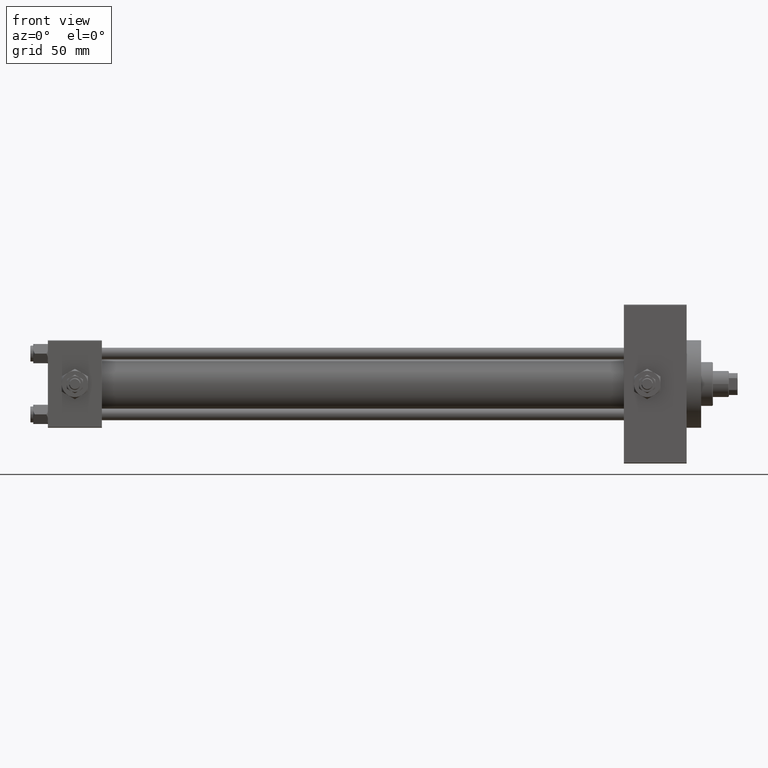
[diagram: clean part render]
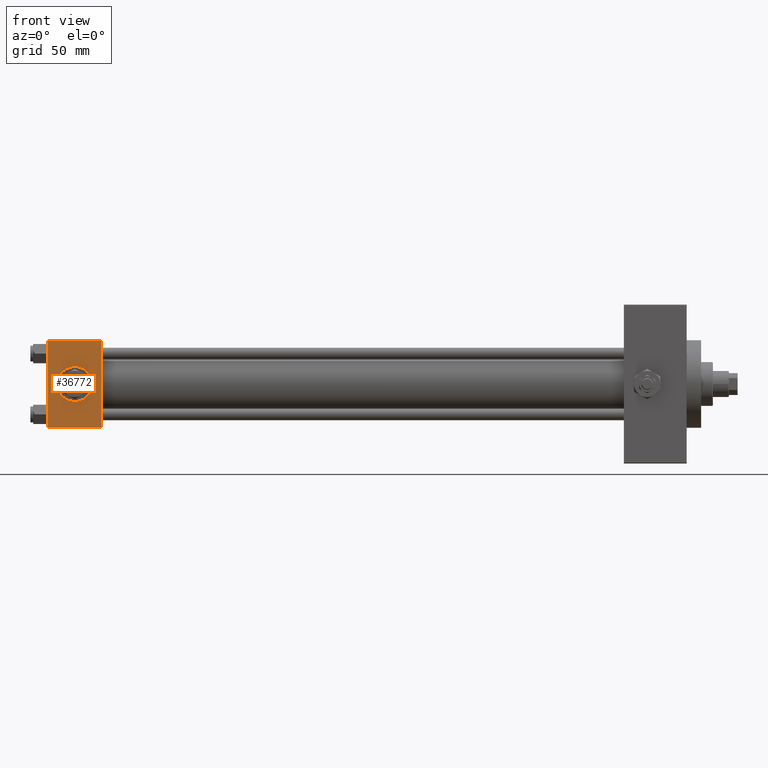
[diagram: same view with one face highlighted and labeled with its STEP entity id]
A machine part, front view. The second image highlights one B-rep face of the part: STEP entity #36772.
In plain terms, the highlighted planar face has unit normal (0, 1, 0).
Its self-contained STEP definition (entity closure, byte-faithful):
#485 = CIRCLE ( 'NONE', #15625, 12.00000000000000178 ) ;
#1474 = FACE_OUTER_BOUND ( 'NONE', #31609, .T. ) ;
#1947 = AXIS2_PLACEMENT_3D ( 'NONE', #16935, #35383, #46848 ) ;
#2569 = EDGE_CURVE ( 'NONE', #6793, #17418, #30662, .T. ) ;
#3181 = ORIENTED_EDGE ( 'NONE', *, *, #48253, .F. ) ;
#4002 = DIRECTION ( 'NONE',  ( 0.000000000000000000, 0.000000000000000000, -1.000000000000000000 ) ) ;
#4810 = VECTOR ( 'NONE', #48285, 1000.000000000000000 ) ;
#4933 = DIRECTION ( 'NONE',  ( 0.000000000000000000, 0.000000000000000000, -1.000000000000000000 ) ) ;
#6793 = VERTEX_POINT ( 'NONE', #42835 ) ;
#6794 = EDGE_CURVE ( 'NONE', #27212, #7622, #35348, .T. ) ;
#7622 = VERTEX_POINT ( 'NONE', #28363 ) ;
#8690 = CARTESIAN_POINT ( 'NONE',  ( 0.000000000000000000, -30.00000000000000000, 29.99999999999999289 ) ) ;
#11413 = LINE ( 'NONE', #30098, #4810 ) ;
#11971 = EDGE_LOOP ( 'NONE', ( #3181, #39334 ) ) ;
#12624 = ORIENTED_EDGE ( 'NONE', *, *, #24878, .T. ) ;
#15116 = DIRECTION ( 'NONE',  ( 1.000000000000000000, 0.000000000000000000, 0.000000000000000000 ) ) ;
#15625 = AXIS2_PLACEMENT_3D ( 'NONE', #49327, #33641, #34386 ) ;
#16935 = CARTESIAN_POINT ( 'NONE',  ( 37.00000000000000000, -30.00000000000000000, 29.99999999999999289 ) ) ;
#17418 = VERTEX_POINT ( 'NONE', #18634 ) ;
#18634 = CARTESIAN_POINT ( 'NONE',  ( 37.00000000000000000, -30.00000000000000000, -29.50000000000001776 ) ) ;
#20517 = CIRCLE ( 'NONE', #39621, 12.00000000000000178 ) ;
#22007 = VECTOR ( 'NONE', #4002, 1000.000000000000000 ) ;
#22418 = CARTESIAN_POINT ( 'NONE',  ( 18.50000000000000000, -30.00000000000000000, 0.000000000000000000 ) ) ;
#22851 = LINE ( 'NONE', #41776, #36214 ) ;
#24420 = PLANE ( 'NONE',  #1947 ) ;
#24878 = EDGE_CURVE ( 'NONE', #6793, #27212, #11413, .T. ) ;
#25169 = CARTESIAN_POINT ( 'NONE',  ( 0.000000000000000000, -30.00000000000000000, 29.49999999999999289 ) ) ;
#26689 = CARTESIAN_POINT ( 'NONE',  ( 37.00000000000000000, -30.00000000000000000, 29.99999999999999289 ) ) ;
#27212 = VERTEX_POINT ( 'NONE', #25169 ) ;
#28363 = CARTESIAN_POINT ( 'NONE',  ( 0.000000000000000000, -30.00000000000000000, -29.50000000000001776 ) ) ;
#29140 = ORIENTED_EDGE ( 'NONE', *, *, #2569, .F. ) ;
#30098 = CARTESIAN_POINT ( 'NONE',  ( 37.00000000000000000, -30.00000000000000000, 29.49999999999999289 ) ) ;
#30662 = LINE ( 'NONE', #26689, #22007 ) ;
#31609 = EDGE_LOOP ( 'NONE', ( #48556, #32184, #29140, #12624 ) ) ;
#32184 = ORIENTED_EDGE ( 'NONE', *, *, #38139, .T. ) ;
#33641 = DIRECTION ( 'NONE',  ( 0.000000000000000000, -1.000000000000000000, -8.673617379884036705E-17 ) ) ;
#34386 = DIRECTION ( 'NONE',  ( 0.000000000000000000, 0.000000000000000000, -1.000000000000000000 ) ) ;
#35348 = LINE ( 'NONE', #8690, #37292 ) ;
#35383 = DIRECTION ( 'NONE',  ( -0.000000000000000000, 1.000000000000000000, 0.000000000000000000 ) ) ;
#35725 = VERTEX_POINT ( 'NONE', #42801 ) ;
#36214 = VECTOR ( 'NONE', #15116, 1000.000000000000000 ) ;
#36772 = ADVANCED_FACE ( 'NONE', ( #39359, #1474 ), #24420, .F. ) ;
#37292 = VECTOR ( 'NONE', #4933, 1000.000000000000000 ) ;
#37628 = CARTESIAN_POINT ( 'NONE',  ( 18.50000000000000000, -30.00000000000000000, 12.00000000000000178 ) ) ;
#38139 = EDGE_CURVE ( 'NONE', #7622, #17418, #22851, .T. ) ;
#39334 = ORIENTED_EDGE ( 'NONE', *, *, #44536, .F. ) ;
#39359 = FACE_BOUND ( 'NONE', #11971, .T. ) ;
#39621 = AXIS2_PLACEMENT_3D ( 'NONE', #22418, #45095, #46083 ) ;
#41776 = CARTESIAN_POINT ( 'NONE',  ( 37.00000000000000000, -30.00000000000000000, -29.50000000000001776 ) ) ;
#42801 = CARTESIAN_POINT ( 'NONE',  ( 18.50000000000000000, -30.00000000000000000, -12.00000000000000178 ) ) ;
#42835 = CARTESIAN_POINT ( 'NONE',  ( 37.00000000000000000, -30.00000000000000000, 29.49999999999999289 ) ) ;
#44536 = EDGE_CURVE ( 'NONE', #44547, #35725, #485, .T. ) ;
#44547 = VERTEX_POINT ( 'NONE', #37628 ) ;
#45095 = DIRECTION ( 'NONE',  ( 0.000000000000000000, -1.000000000000000000, -8.673617379884036705E-17 ) ) ;
#46083 = DIRECTION ( 'NONE',  ( 0.000000000000000000, 0.000000000000000000, -1.000000000000000000 ) ) ;
#46848 = DIRECTION ( 'NONE',  ( 0.000000000000000000, -0.000000000000000000, 1.000000000000000000 ) ) ;
#48253 = EDGE_CURVE ( 'NONE', #35725, #44547, #20517, .T. ) ;
#48285 = DIRECTION ( 'NONE',  ( -1.000000000000000000, 0.000000000000000000, 0.000000000000000000 ) ) ;
#48556 = ORIENTED_EDGE ( 'NONE', *, *, #6794, .T. ) ;
#49327 = CARTESIAN_POINT ( 'NONE',  ( 18.50000000000000000, -30.00000000000000000, 0.000000000000000000 ) ) ;